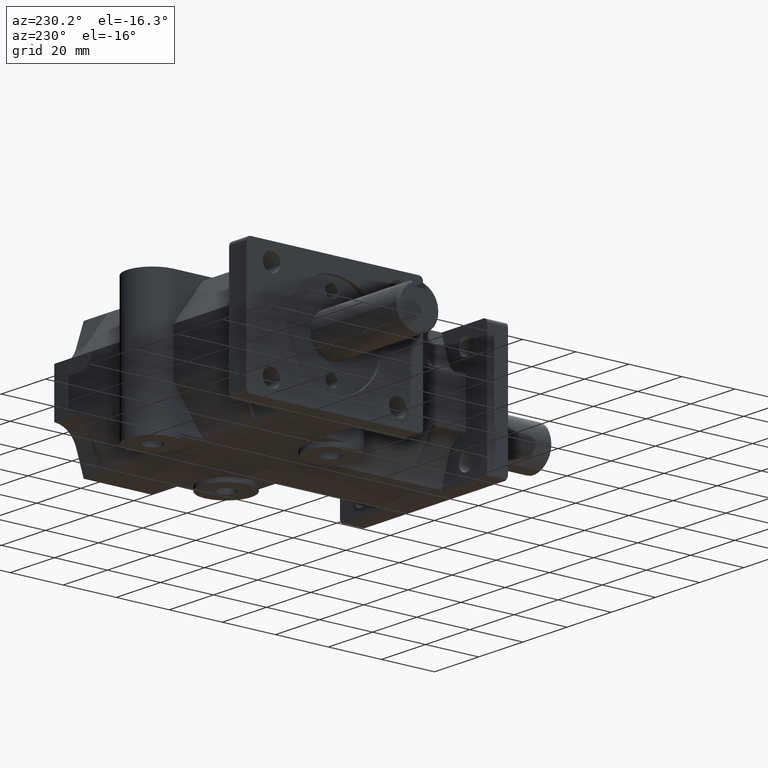
[diagram: clean part render]
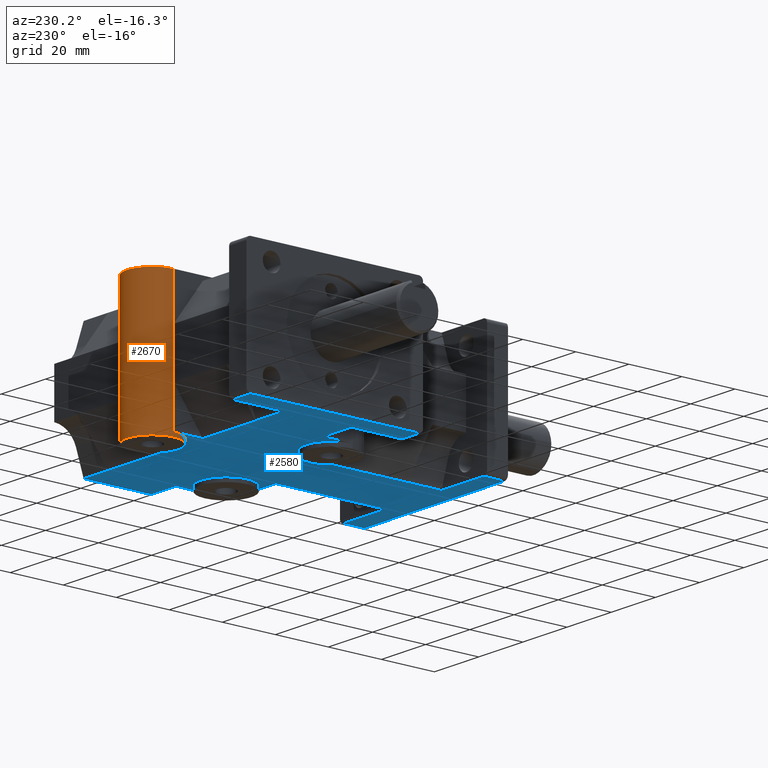
[diagram: same view with the hole feature highlighted: cylindrical wall and planar end face, labeled with their STEP entity ids]
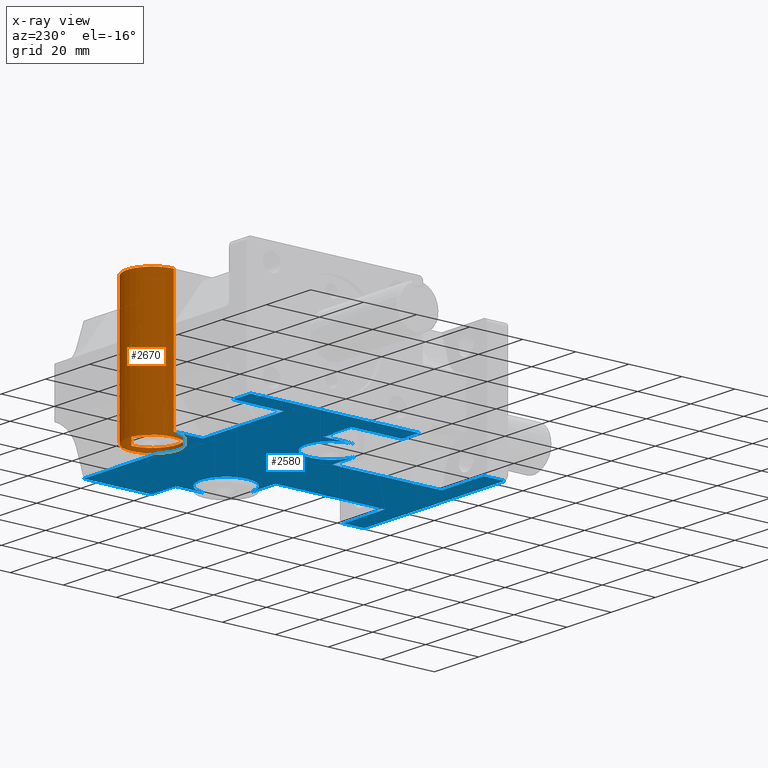
[diagram: x-ray of the same camera — body ghosted, the hole faces saturated]
A machine part, auxiliary view. The highlighted faces form one hole feature of diameter 19.05 mm: the cylindrical wall (entity #2670, orange) and its adjacent planar end face (entity #2580, blue) — they share a circular edge in the B-rep.
The next image is the same camera in x-ray (body ghosted, the hole faces saturated) — the bore reads through the body.
Wall:
#277=FACE_OUTER_BOUND('',#462,.T.);
#462=EDGE_LOOP('',(#2323,#2324,#2325,#2326,#2327,#2328,#2329,#2330,#2331,
#2332,#2333));
#715=LINE('',#4446,#980);
#716=LINE('',#4447,#981);
#717=LINE('',#4448,#982);
#718=LINE('',#4449,#983);
#719=LINE('',#4451,#984);
#720=LINE('',#4452,#985);
#721=LINE('',#4453,#986);
#980=VECTOR('',#3649,1.);
#981=VECTOR('',#3650,1.);
#982=VECTOR('',#3651,0.375);
#983=VECTOR('',#3652,1.);
#984=VECTOR('',#3653,1.);
#985=VECTOR('',#3654,1.);
#986=VECTOR('',#3655,1.);
#1074=CIRCLE('',#2797,0.375);
#1123=CIRCLE('',#2933,0.375);
#1126=CIRCLE('',#2938,0.375);
#1213=VERTEX_POINT('',#3974);
#1214=VERTEX_POINT('',#3976);
#1282=VERTEX_POINT('',#4170);
#1292=VERTEX_POINT('',#4203);
#1351=VERTEX_POINT('',#4427);
#1356=VERTEX_POINT('',#4439);
#1357=VERTEX_POINT('',#4441);
#1358=VERTEX_POINT('',#4445);
#1359=VERTEX_POINT('',#4450);
#1477=EDGE_CURVE('',#1213,#1214,#1074,.T.);
#1696=EDGE_CURVE('',#1351,#1351,#1123,.T.);
#1703=EDGE_CURVE('',#1356,#1357,#1126,.T.);
#1704=EDGE_CURVE('',#1292,#1358,#715,.T.);
#1705=EDGE_CURVE('',#1214,#1292,#716,.T.);
#1706=EDGE_CURVE('',#1213,#1351,#717,.T.);
#1707=EDGE_CURVE('',#1213,#1282,#718,.T.);
#1708=EDGE_CURVE('',#1359,#1282,#719,.T.);
#1709=EDGE_CURVE('',#1359,#1356,#720,.T.);
#1710=EDGE_CURVE('',#1358,#1357,#721,.T.);
#2323=ORIENTED_EDGE('',*,*,#1704,.F.);
#2324=ORIENTED_EDGE('',*,*,#1705,.F.);
#2325=ORIENTED_EDGE('',*,*,#1477,.F.);
#2326=ORIENTED_EDGE('',*,*,#1706,.T.);
#2327=ORIENTED_EDGE('',*,*,#1696,.T.);
#2328=ORIENTED_EDGE('',*,*,#1706,.F.);
#2329=ORIENTED_EDGE('',*,*,#1707,.T.);
#2330=ORIENTED_EDGE('',*,*,#1708,.F.);
#2331=ORIENTED_EDGE('',*,*,#1709,.T.);
#2332=ORIENTED_EDGE('',*,*,#1703,.T.);
#2333=ORIENTED_EDGE('',*,*,#1710,.F.);
#2547=CYLINDRICAL_SURFACE('',#2939,0.375);
#2670=ADVANCED_FACE('',(#277),#2547,.T.);
#2797=AXIS2_PLACEMENT_3D('',#3977,#3193,#3194);
#2933=AXIS2_PLACEMENT_3D('',#4428,#3631,#3632);
#2938=AXIS2_PLACEMENT_3D('',#4443,#3645,#3646);
#2939=AXIS2_PLACEMENT_3D('',#4444,#3647,#3648);
#3193=DIRECTION('center_axis',(0.,0.,1.));
#3194=DIRECTION('ref_axis',(1.,0.,0.));
#3631=DIRECTION('center_axis',(0.,0.,1.));
#3632=DIRECTION('ref_axis',(1.,0.,0.));
#3645=DIRECTION('center_axis',(0.,0.,-1.));
#3646=DIRECTION('ref_axis',(1.,0.,0.));
#3647=DIRECTION('center_axis',(0.,0.,1.));
#3648=DIRECTION('ref_axis',(1.,0.,0.));
#3649=DIRECTION('',(0.,0.,1.));
#3650=DIRECTION('',(0.,0.,1.));
#3651=DIRECTION('',(0.,0.,-1.));
#3652=DIRECTION('',(0.,0.,1.));
#3653=DIRECTION('',(0.,0.,-1.));
#3654=DIRECTION('',(0.,0.,1.));
#3655=DIRECTION('',(0.,0.,1.));
#3974=CARTESIAN_POINT('',(-0.375,4.1875,-0.9375));
#3976=CARTESIAN_POINT('',(0.375,4.1875,-0.9375));
#3977=CARTESIAN_POINT('Origin',(0.,4.1875,-0.9375));
#4170=CARTESIAN_POINT('',(-0.375,4.1875,-0.343749999999999));
#4203=CARTESIAN_POINT('',(0.375,4.1875,-0.343749999999998));
#4427=CARTESIAN_POINT('',(-0.375,4.1875,-1.));
#4428=CARTESIAN_POINT('Origin',(0.,4.1875,-1.));
#4439=CARTESIAN_POINT('',(-0.375,4.1875,1.));
#4441=CARTESIAN_POINT('',(0.375,4.1875,1.));
#4443=CARTESIAN_POINT('Origin',(0.,4.1875,1.));
#4444=CARTESIAN_POINT('Origin',(0.,4.1875,0.));
#4445=CARTESIAN_POINT('',(0.375,4.1875,0.343749999999998));
#4446=CARTESIAN_POINT('',(0.375,4.1875,0.));
#4447=CARTESIAN_POINT('',(0.375,4.1875,0.));
#4448=CARTESIAN_POINT('',(-0.375,4.1875,0.));
#4449=CARTESIAN_POINT('',(-0.375,4.1875,0.));
#4450=CARTESIAN_POINT('',(-0.375,4.1875,0.343749999999999));
#4451=CARTESIAN_POINT('',(-0.375,4.1875,0.));
#4452=CARTESIAN_POINT('',(-0.375,4.1875,0.));
#4453=CARTESIAN_POINT('',(0.375,4.1875,0.));
End face:
#70=PLANE('',#2796);
#187=FACE_OUTER_BOUND('',#359,.T.);
#359=EDGE_LOOP('',(#1888,#1889,#1890,#1891,#1892,#1893,#1894,#1895,#1896,
#1897,#1898,#1899,#1900,#1901,#1902,#1903,#1904,#1905,#1906,#1907,#1908,
#1909,#1910,#1911,#1912,#1913,#1914,#1915,#1916,#1917,#1918,#1919,#1920));
#502=LINE('',#3831,#767);
#505=LINE('',#3846,#770);
#510=LINE('',#3867,#775);
#515=LINE('',#3891,#780);
#517=LINE('',#3896,#782);
#521=LINE('',#3910,#786);
#530=LINE('',#3934,#795);
#537=LINE('',#3955,#802);
#541=LINE('',#3969,#806);
#542=LINE('',#3971,#807);
#543=LINE('',#3973,#808);
#544=LINE('',#3975,#809);
#545=LINE('',#3979,#810);
#546=LINE('',#3981,#811);
#547=LINE('',#3983,#812);
#548=LINE('',#3985,#813);
#549=LINE('',#3987,#814);
#550=LINE('',#3989,#815);
#551=LINE('',#3991,#816);
#552=LINE('',#3997,#817);
#553=LINE('',#3999,#818);
#554=LINE('',#4000,#819);
#555=LINE('',#4002,#820);
#556=LINE('',#4004,#821);
#557=LINE('',#4006,#822);
#558=LINE('',#4008,#823);
#559=LINE('',#4012,#824);
#560=LINE('',#4014,#825);
#561=LINE('',#4015,#826);
#767=VECTOR('',#3066,1.);
#770=VECTOR('',#3079,1.);
#775=VECTOR('',#3098,1.);
#780=VECTOR('',#3119,1.);
#782=VECTOR('',#3125,1.);
#786=VECTOR('',#3139,1.);
#795=VECTOR('',#3158,1.);
#802=VECTOR('',#3175,1.);
#806=VECTOR('',#3189,1.);
#807=VECTOR('',#3190,1.);
#808=VECTOR('',#3191,1.);
#809=VECTOR('',#3192,1.);
#810=VECTOR('',#3195,1.);
#811=VECTOR('',#3196,1.);
#812=VECTOR('',#3197,1.);
#813=VECTOR('',#3198,1.);
#814=VECTOR('',#3199,1.);
#815=VECTOR('',#3200,1.);
#816=VECTOR('',#3201,1.);
#817=VECTOR('',#3206,1.);
#818=VECTOR('',#3207,1.);
#819=VECTOR('',#3208,1.);
#820=VECTOR('',#3209,1.);
#821=VECTOR('',#3210,1.);
#822=VECTOR('',#3211,1.);
#823=VECTOR('',#3212,1.);
#824=VECTOR('',#3215,1.);
#825=VECTOR('',#3216,1.);
#826=VECTOR('',#3217,1.);
#1074=CIRCLE('',#2797,0.375);
#1075=CIRCLE('',#2798,0.375);
#1076=CIRCLE('',#2799,0.375);
#1077=CIRCLE('',#2800,0.375);
#1150=VERTEX_POINT('',#3824);
#1153=VERTEX_POINT('',#3829);
#1159=VERTEX_POINT('',#3843);
#1160=VERTEX_POINT('',#3845);
#1166=VERTEX_POINT('',#3860);
#1169=VERTEX_POINT('',#3865);
#1179=VERTEX_POINT('',#3888);
#1180=VERTEX_POINT('',#3890);
#1186=VERTEX_POINT('',#3909);
#1196=VERTEX_POINT('',#3933);
#1210=VERTEX_POINT('',#3968);
#1211=VERTEX_POINT('',#3970);
#1212=VERTEX_POINT('',#3972);
#1213=VERTEX_POINT('',#3974);
#1214=VERTEX_POINT('',#3976);
#1215=VERTEX_POINT('',#3978);
#1216=VERTEX_POINT('',#3980);
#1217=VERTEX_POINT('',#3982);
#1218=VERTEX_POINT('',#3984);
#1219=VERTEX_POINT('',#3986);
#1220=VERTEX_POINT('',#3988);
#1221=VERTEX_POINT('',#3990);
#1222=VERTEX_POINT('',#3992);
#1223=VERTEX_POINT('',#3994);
#1224=VERTEX_POINT('',#3996);
#1225=VERTEX_POINT('',#3998);
#1226=VERTEX_POINT('',#4001);
#1227=VERTEX_POINT('',#4003);
#1228=VERTEX_POINT('',#4005);
#1229=VERTEX_POINT('',#4007);
#1230=VERTEX_POINT('',#4009);
#1231=VERTEX_POINT('',#4011);
#1232=VERTEX_POINT('',#4013);
#1404=EDGE_CURVE('',#1153,#1150,#502,.T.);
#1410=EDGE_CURVE('',#1159,#1160,#505,.T.);
#1420=EDGE_CURVE('',#1169,#1166,#510,.T.);
#1430=EDGE_CURVE('',#1179,#1180,#515,.T.);
#1433=EDGE_CURVE('',#1150,#1159,#517,.T.);
#1441=EDGE_CURVE('',#1160,#1186,#521,.T.);
#1454=EDGE_CURVE('',#1180,#1196,#530,.T.);
#1465=EDGE_CURVE('',#1166,#1179,#537,.T.);
#1473=EDGE_CURVE('',#1210,#1153,#541,.T.);
#1474=EDGE_CURVE('',#1211,#1210,#542,.T.);
#1475=EDGE_CURVE('',#1212,#1211,#543,.T.);
#1476=EDGE_CURVE('',#1213,#1212,#544,.T.);
#1477=EDGE_CURVE('',#1213,#1214,#1074,.T.);
#1478=EDGE_CURVE('',#1215,#1214,#545,.T.);
#1479=EDGE_CURVE('',#1216,#1215,#546,.T.);
#1480=EDGE_CURVE('',#1217,#1216,#547,.T.);
#1481=EDGE_CURVE('',#1217,#1218,#548,.T.);
#1482=EDGE_CURVE('',#1219,#1218,#549,.T.);
#1483=EDGE_CURVE('',#1220,#1219,#550,.T.);
#1484=EDGE_CURVE('',#1221,#1220,#551,.T.);
#1485=EDGE_CURVE('',#1221,#1222,#1075,.T.);
#1486=EDGE_CURVE('',#1222,#1223,#1076,.T.);
#1487=EDGE_CURVE('',#1224,#1223,#552,.T.);
#1488=EDGE_CURVE('',#1225,#1224,#553,.T.);
#1489=EDGE_CURVE('',#1196,#1225,#554,.T.);
#1490=EDGE_CURVE('',#1226,#1169,#555,.T.);
#1491=EDGE_CURVE('',#1227,#1226,#556,.T.);
#1492=EDGE_CURVE('',#1228,#1227,#557,.T.);
#1493=EDGE_CURVE('',#1229,#1228,#558,.T.);
#1494=EDGE_CURVE('',#1229,#1230,#1077,.T.);
#1495=EDGE_CURVE('',#1231,#1230,#559,.T.);
#1496=EDGE_CURVE('',#1232,#1231,#560,.T.);
#1497=EDGE_CURVE('',#1186,#1232,#561,.T.);
#1888=ORIENTED_EDGE('',*,*,#1404,.F.);
#1889=ORIENTED_EDGE('',*,*,#1473,.F.);
#1890=ORIENTED_EDGE('',*,*,#1474,.F.);
#1891=ORIENTED_EDGE('',*,*,#1475,.F.);
#1892=ORIENTED_EDGE('',*,*,#1476,.F.);
#1893=ORIENTED_EDGE('',*,*,#1477,.T.);
#1894=ORIENTED_EDGE('',*,*,#1478,.F.);
#1895=ORIENTED_EDGE('',*,*,#1479,.F.);
#1896=ORIENTED_EDGE('',*,*,#1480,.F.);
#1897=ORIENTED_EDGE('',*,*,#1481,.T.);
#1898=ORIENTED_EDGE('',*,*,#1482,.F.);
#1899=ORIENTED_EDGE('',*,*,#1483,.F.);
#1900=ORIENTED_EDGE('',*,*,#1484,.F.);
#1901=ORIENTED_EDGE('',*,*,#1485,.T.);
#1902=ORIENTED_EDGE('',*,*,#1486,.T.);
#1903=ORIENTED_EDGE('',*,*,#1487,.F.);
#1904=ORIENTED_EDGE('',*,*,#1488,.F.);
#1905=ORIENTED_EDGE('',*,*,#1489,.F.);
#1906=ORIENTED_EDGE('',*,*,#1454,.F.);
#1907=ORIENTED_EDGE('',*,*,#1430,.F.);
#1908=ORIENTED_EDGE('',*,*,#1465,.F.);
#1909=ORIENTED_EDGE('',*,*,#1420,.F.);
#1910=ORIENTED_EDGE('',*,*,#1490,.F.);
#1911=ORIENTED_EDGE('',*,*,#1491,.F.);
#1912=ORIENTED_EDGE('',*,*,#1492,.F.);
#1913=ORIENTED_EDGE('',*,*,#1493,.F.);
#1914=ORIENTED_EDGE('',*,*,#1494,.T.);
#1915=ORIENTED_EDGE('',*,*,#1495,.F.);
#1916=ORIENTED_EDGE('',*,*,#1496,.F.);
#1917=ORIENTED_EDGE('',*,*,#1497,.F.);
#1918=ORIENTED_EDGE('',*,*,#1441,.F.);
#1919=ORIENTED_EDGE('',*,*,#1410,.F.);
#1920=ORIENTED_EDGE('',*,*,#1433,.F.);
#2580=ADVANCED_FACE('',(#187),#70,.F.);
#2796=AXIS2_PLACEMENT_3D('',#3967,#3187,#3188);
#2797=AXIS2_PLACEMENT_3D('',#3977,#3193,#3194);
#2798=AXIS2_PLACEMENT_3D('',#3993,#3202,#3203);
#2799=AXIS2_PLACEMENT_3D('',#3995,#3204,#3205);
#2800=AXIS2_PLACEMENT_3D('',#4010,#3213,#3214);
#3066=DIRECTION('',(-1.,0.,0.));
#3079=DIRECTION('',(1.,0.,0.));
#3098=DIRECTION('',(0.,-1.,0.));
#3119=DIRECTION('',(0.,1.,0.));
#3125=DIRECTION('',(0.,-1.,0.));
#3139=DIRECTION('',(0.,1.,0.));
#3158=DIRECTION('',(-1.,0.,0.));
#3175=DIRECTION('',(1.,0.,0.));
#3187=DIRECTION('center_axis',(0.,0.,1.));
#3188=DIRECTION('ref_axis',(-1.,0.,0.));
#3189=DIRECTION('',(0.,1.,0.));
#3190=DIRECTION('',(-1.,0.,0.));
#3191=DIRECTION('',(-1.,0.,0.));
#3192=DIRECTION('',(0.,-1.,0.));
#3193=DIRECTION('center_axis',(0.,0.,1.));
#3194=DIRECTION('ref_axis',(1.,0.,0.));
#3195=DIRECTION('',(0.,1.,0.));
#3196=DIRECTION('',(-1.,0.,0.));
#3197=DIRECTION('',(-1.,0.,0.));
#3198=DIRECTION('',(0.,-1.,0.));
#3199=DIRECTION('',(1.,0.,0.));
#3200=DIRECTION('',(1.,0.,0.));
#3201=DIRECTION('',(0.,1.,0.));
#3202=DIRECTION('center_axis',(0.,0.,1.));
#3203=DIRECTION('ref_axis',(1.,0.,0.));
#3204=DIRECTION('center_axis',(0.,0.,1.));
#3205=DIRECTION('ref_axis',(1.,0.,0.));
#3206=DIRECTION('',(1.,0.,0.));
#3207=DIRECTION('',(0.,1.,0.));
#3208=DIRECTION('',(0.,1.,0.));
#3209=DIRECTION('',(-1.,0.,0.));
#3210=DIRECTION('',(0.,-1.,0.));
#3211=DIRECTION('',(0.,-1.,0.));
#3212=DIRECTION('',(1.,0.,0.));
#3213=DIRECTION('center_axis',(0.,0.,1.));
#3214=DIRECTION('ref_axis',(1.,0.,0.));
#3215=DIRECTION('',(0.,-1.,0.));
#3216=DIRECTION('',(1.,0.,0.));
#3217=DIRECTION('',(1.,0.,0.));
#3824=CARTESIAN_POINT('',(-2.125,4.5,-0.9375));
#3829=CARTESIAN_POINT('',(-1.815,4.5,-0.9375));
#3831=CARTESIAN_POINT('',(-0.9075,4.5,-0.9375));
#3843=CARTESIAN_POINT('',(-2.125,2.,-0.9375));
#3845=CARTESIAN_POINT('',(-1.815,2.,-0.9375));
#3846=CARTESIAN_POINT('',(-1.0625,2.,-0.9375));
#3860=CARTESIAN_POINT('',(-1.25,0.,-0.9375));
#3865=CARTESIAN_POINT('',(-1.25,0.31,-0.9375));
#3867=CARTESIAN_POINT('',(-1.25,1.36489507691196,-0.9375));
#3888=CARTESIAN_POINT('',(1.25,0.,-0.9375));
#3890=CARTESIAN_POINT('',(1.25,0.31,-0.9375));
#3891=CARTESIAN_POINT('',(1.25,1.20989507691196,-0.9375));
#3896=CARTESIAN_POINT('',(-2.125,1.94,-0.9375));
#3909=CARTESIAN_POINT('',(-1.815,2.75,-0.9375));
#3910=CARTESIAN_POINT('',(-1.815,2.17989507691196,-0.9375));
#3933=CARTESIAN_POINT('',(0.5,0.31,-0.9375));
#3934=CARTESIAN_POINT('',(0.655,0.31,-0.9375));
#3955=CARTESIAN_POINT('',(1.31,0.,-0.9375));
#3967=CARTESIAN_POINT('Origin',(-1.38777878078145E-17,2.41979015382392,
-0.9375));
#3968=CARTESIAN_POINT('',(-1.815,3.75,-0.9375));
#3969=CARTESIAN_POINT('',(-1.815,4.56,-0.9375));
#3970=CARTESIAN_POINT('',(-1.315,3.75,-0.9375));
#3971=CARTESIAN_POINT('',(-0.1875,3.75,-0.9375));
#3972=CARTESIAN_POINT('',(-0.375,3.75,-0.9375));
#3973=CARTESIAN_POINT('',(-0.1875,3.75,-0.9375));
#3974=CARTESIAN_POINT('',(-0.375,4.1875,-0.9375));
#3975=CARTESIAN_POINT('',(-0.375,3.25,-0.9375));
#3976=CARTESIAN_POINT('',(0.375,4.1875,-0.9375));
#3977=CARTESIAN_POINT('Origin',(0.,4.1875,-0.9375));
#3978=CARTESIAN_POINT('',(0.375,3.75,-0.9375));
#3979=CARTESIAN_POINT('',(0.375,3.25,-0.9375));
#3980=CARTESIAN_POINT('',(1.315,3.75,-0.9375));
#3981=CARTESIAN_POINT('',(-0.1875,3.75,-0.9375));
#3982=CARTESIAN_POINT('',(1.75,3.75,-0.9375));
#3983=CARTESIAN_POINT('',(-0.1875,3.75,-0.9375));
#3984=CARTESIAN_POINT('',(1.75,2.75,-0.9375));
#3985=CARTESIAN_POINT('',(1.75,0.308666014411958,-0.9375));
#3986=CARTESIAN_POINT('',(1.315,2.75,-0.9375));
#3987=CARTESIAN_POINT('',(0.328125,2.75,-0.9375));
#3988=CARTESIAN_POINT('',(1.3125,2.75,-0.9375));
#3989=CARTESIAN_POINT('',(0.328125,2.75,-0.9375));
#3990=CARTESIAN_POINT('',(1.3125,2.3125,-0.9375));
#3991=CARTESIAN_POINT('',(1.3125,2.3125,-0.9375));
#3992=CARTESIAN_POINT('',(0.5625,2.3125,-0.9375));
#3993=CARTESIAN_POINT('Origin',(0.9375,2.3125,-0.9375));
#3994=CARTESIAN_POINT('',(0.9375,1.9375,-0.9375));
#3995=CARTESIAN_POINT('Origin',(0.9375,2.3125,-0.9375));
#3996=CARTESIAN_POINT('',(0.5,1.9375,-0.9375));
#3997=CARTESIAN_POINT('',(-0.9375,1.9375,-0.9375));
#3998=CARTESIAN_POINT('',(0.5,0.81,-0.9375));
#3999=CARTESIAN_POINT('',(0.5,1.36489507691196,-0.9375));
#4000=CARTESIAN_POINT('',(0.5,1.36489507691196,-0.9375));
#4001=CARTESIAN_POINT('',(-0.5,0.31,-0.9375));
#4002=CARTESIAN_POINT('',(-1.31,0.31,-0.9375));
#4003=CARTESIAN_POINT('',(-0.5,0.81,-0.9375));
#4004=CARTESIAN_POINT('',(-0.5,2.17864507691196,-0.9375));
#4005=CARTESIAN_POINT('',(-0.5,1.9375,-0.9375));
#4006=CARTESIAN_POINT('',(-0.5,2.17864507691196,-0.9375));
#4007=CARTESIAN_POINT('',(-0.9375,1.9375,-0.9375));
#4008=CARTESIAN_POINT('',(-0.9375,1.9375,-0.9375));
#4009=CARTESIAN_POINT('',(-1.3125,2.3125,-0.9375));
#4010=CARTESIAN_POINT('Origin',(-0.9375,2.3125,-0.9375));
#4011=CARTESIAN_POINT('',(-1.3125,2.75,-0.9375));
#4012=CARTESIAN_POINT('',(-1.3125,2.3125,-0.9375));
#4013=CARTESIAN_POINT('',(-1.315,2.75,-0.9375));
#4014=CARTESIAN_POINT('',(-0.45375,2.75,-0.9375));
#4015=CARTESIAN_POINT('',(-0.45375,2.75,-0.9375));